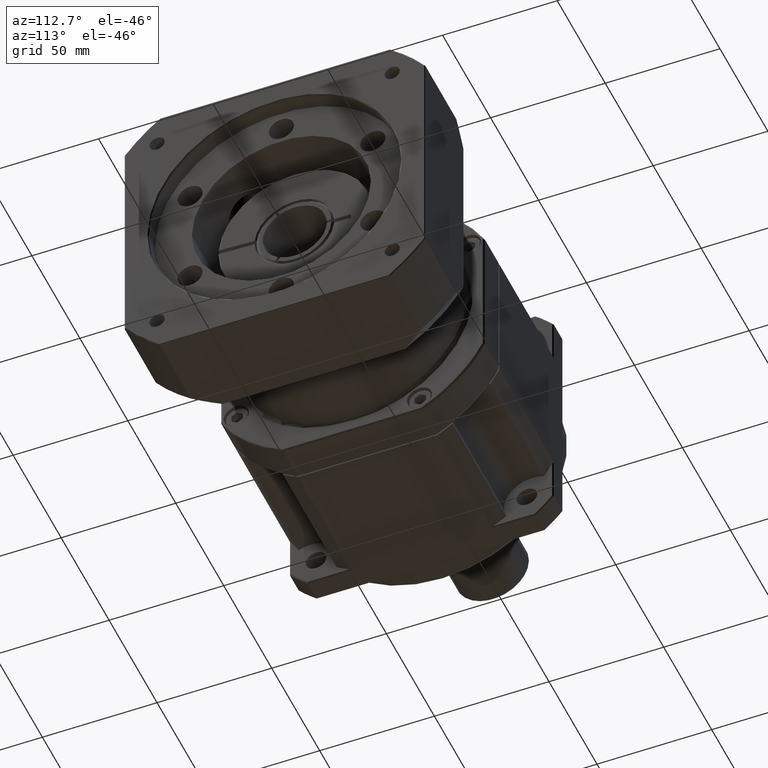
[diagram: clean part render]
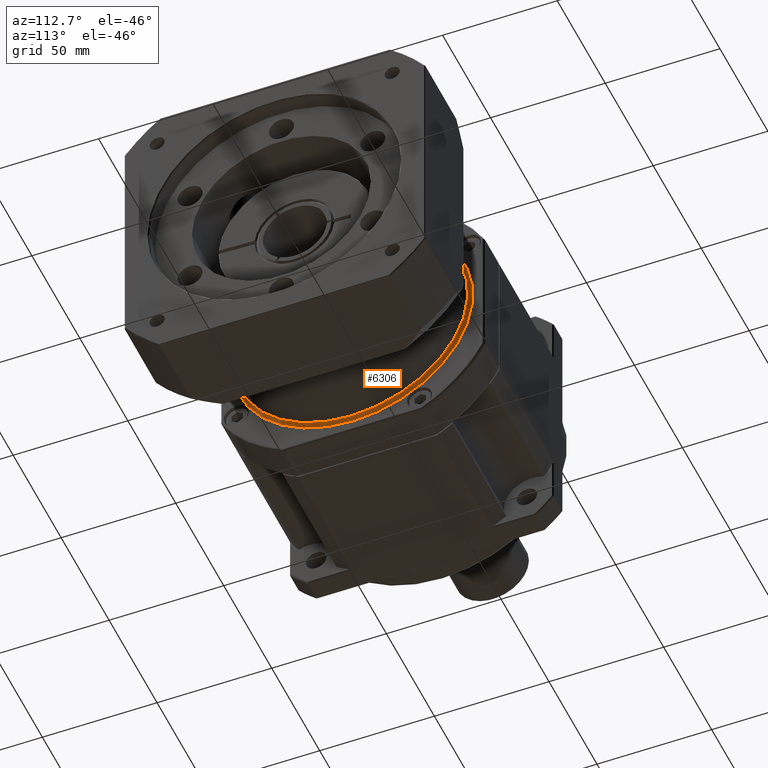
[diagram: same view with one face highlighted and labeled with its STEP entity id]
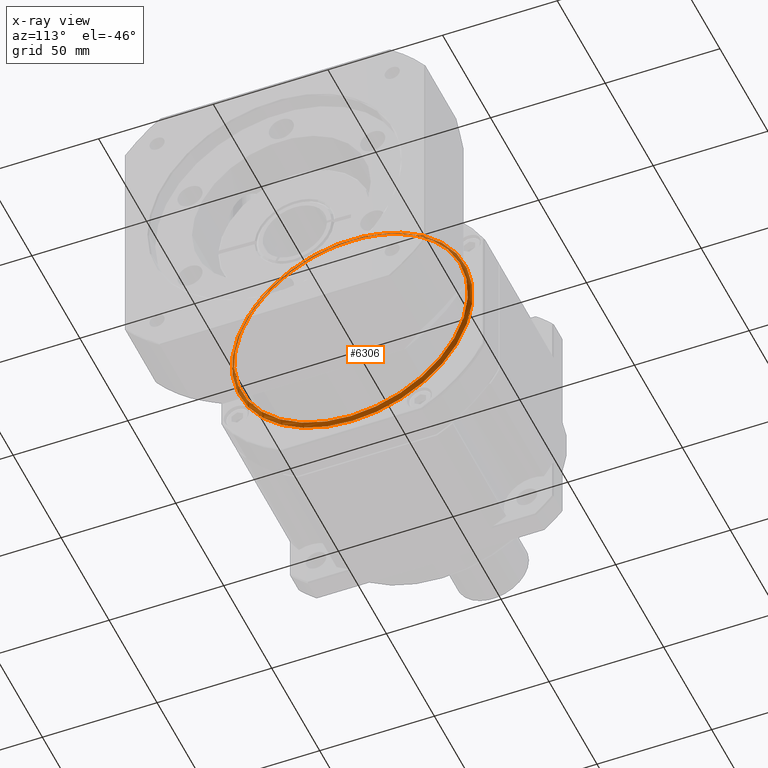
[diagram: x-ray of the same camera — body ghosted, the highlighted face saturated]
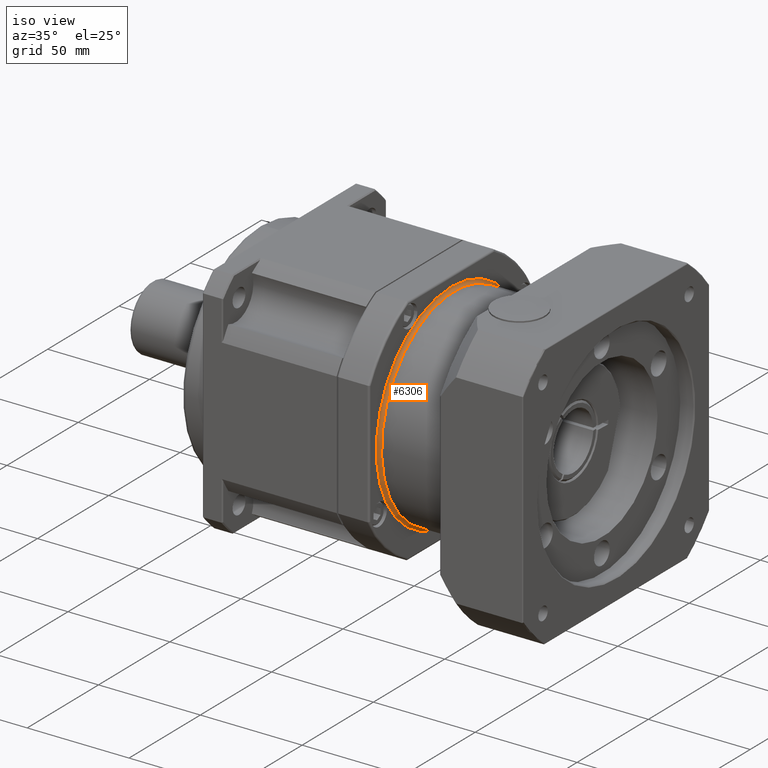
[diagram: same view with one face highlighted and labeled with its STEP entity id]
A machine part, auxiliary view. The second image highlights one B-rep face of the part: STEP entity #6306.
The next image is the same camera in x-ray: the body ghosted, the highlighted face saturated — about 24% of this face is hidden behind the body in this view.
A second angle (iso view) of the same face is appended — the face is thin or edge-on in the first view.
In plain terms, the highlighted toroidal blend (fillet) surface has major radius 52.5 mm and minor (blend) radius 1.5 mm.
Its self-contained STEP definition (entity closure, byte-faithful):
#872=TOROIDAL_SURFACE('',#6904,52.5,1.5);
#1198=FACE_BOUND('',#2045,.T.);
#1504=FACE_OUTER_BOUND('',#2044,.T.);
#2044=EDGE_LOOP('',(#4739));
#2045=EDGE_LOOP('',(#4740));
#2531=CIRCLE('',#6905,51.);
#2532=CIRCLE('',#6906,52.5);
#2990=VERTEX_POINT('',#10403);
#2991=VERTEX_POINT('',#10405);
#3639=EDGE_CURVE('',#2990,#2990,#2531,.T.);
#3640=EDGE_CURVE('',#2991,#2991,#2532,.T.);
#4739=ORIENTED_EDGE('',*,*,#3639,.T.);
#4740=ORIENTED_EDGE('',*,*,#3640,.T.);
#6306=ADVANCED_FACE('',(#1504,#1198),#872,.F.);
#6904=AXIS2_PLACEMENT_3D('',#10402,#8151,#8152);
#6905=AXIS2_PLACEMENT_3D('',#10404,#8153,#8154);
#6906=AXIS2_PLACEMENT_3D('',#10406,#8155,#8156);
#8151=DIRECTION('center_axis',(-1.,-4.85755800782923E-16,-1.72164054506969E-16));
#8152=DIRECTION('ref_axis',(-1.70645390822015E-16,-1.31581988103722E-15,
1.));
#8153=DIRECTION('center_axis',(-1.,-4.85755800782923E-16,-1.72164054506969E-16));
#8154=DIRECTION('ref_axis',(-1.72164054506969E-16,-1.32271987416885E-15,
1.));
#8155=DIRECTION('center_axis',(1.,4.85755800782923E-16,1.72164054506969E-16));
#8156=DIRECTION('ref_axis',(-1.72164054506969E-16,-1.32271987416886E-15,
1.));
#10402=CARTESIAN_POINT('Origin',(0.948604393110651,-123.244525766391,-104.9535040948));
#10403=CARTESIAN_POINT('',(0.94860439311066,-123.244525766391,-155.9535040948));
#10404=CARTESIAN_POINT('Origin',(0.948604393110651,-123.244525766391,-104.9535040948));
#10405=CARTESIAN_POINT('',(-0.55139560688934,-123.244525766391,-157.4535040948));
#10406=CARTESIAN_POINT('Origin',(-0.551395606889349,-123.244525766391,-104.9535040948));